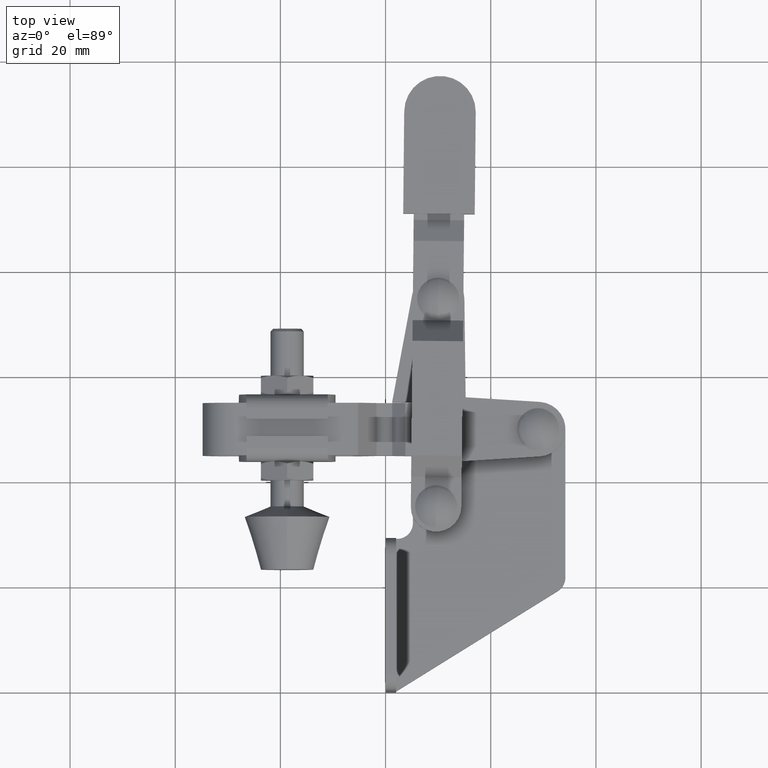
[diagram: clean part render]
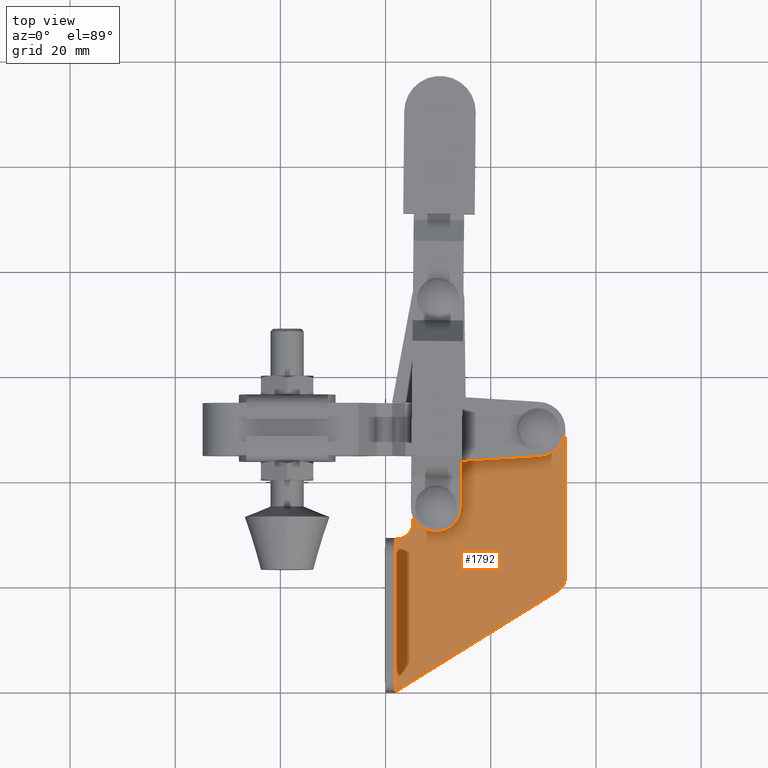
[diagram: same view with one face highlighted and labeled with its STEP entity id]
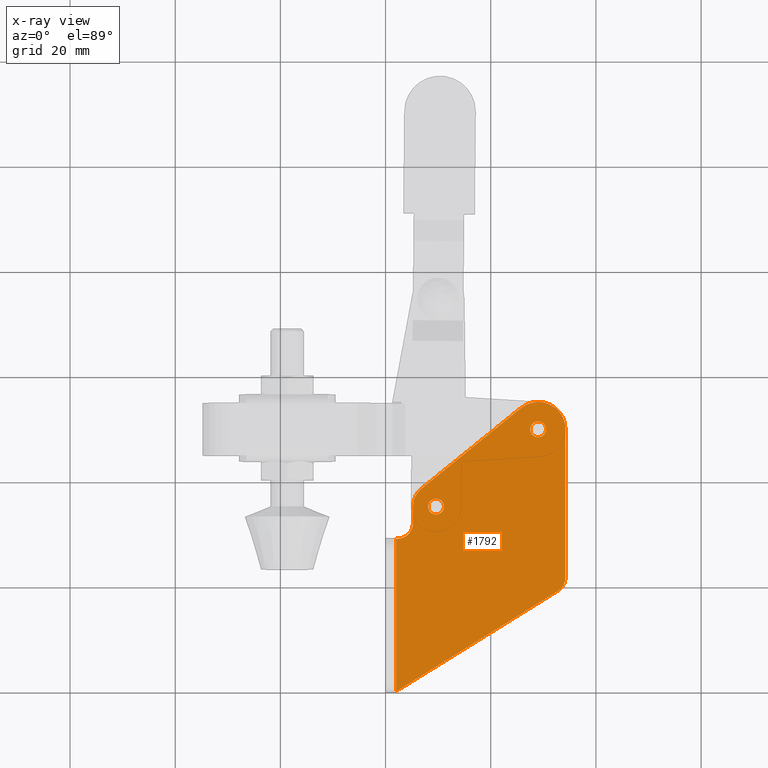
[diagram: x-ray of the same camera — body ghosted, the highlighted face saturated]
A machine part, top view. The second image highlights one B-rep face of the part: STEP entity #1792.
The next image is the same camera in x-ray: the body ghosted, the highlighted face saturated — about 0% of this face is hidden behind the body in this view.
In plain terms, the highlighted planar face has unit normal (0, 0, 1).
Its self-contained STEP definition (entity closure, byte-faithful):
#23 = AXIS2_PLACEMENT_3D ( 'NONE', #5182, #4203, #4212 ) ;
#273 = ORIENTED_EDGE ( 'NONE', *, *, #2440, .T. ) ;
#390 = CARTESIAN_POINT ( 'NONE',  ( 34.19999999999995300, 49.83000000000000500, 2.000000000000000000 ) ) ;
#454 = DIRECTION ( 'NONE',  ( -2.463941005689779100E-016, 1.000000000000000000, -0.0000000000000000000 ) ) ;
#516 = AXIS2_PLACEMENT_3D ( 'NONE', #8705, #6193, #638 ) ;
#535 = AXIS2_PLACEMENT_3D ( 'NONE', #3298, #9669, #4166 ) ;
#602 = LINE ( 'NONE', #390, #6183 ) ;
#638 = DIRECTION ( 'NONE',  ( 1.000000000000000000, 0.0000000000000000000, 0.0000000000000000000 ) ) ;
#747 = FACE_OUTER_BOUND ( 'NONE', #7715, .T. ) ;
#763 = VERTEX_POINT ( 'NONE', #8246 ) ;
#929 = VECTOR ( 'NONE', #1262, 1000.000000000000100 ) ;
#1213 = EDGE_CURVE ( 'NONE', #3028, #5829, #4972, .T. ) ;
#1262 = DIRECTION ( 'NONE',  ( 0.8494770825138299200, 0.5276255170893382500, 0.0000000000000000000 ) ) ;
#1269 = VERTEX_POINT ( 'NONE', #9660 ) ;
#1341 = DIRECTION ( 'NONE',  ( 1.000000000000000000, 0.0000000000000000000, 0.0000000000000000000 ) ) ;
#1406 = ORIENTED_EDGE ( 'NONE', *, *, #1548, .T. ) ;
#1470 = DIRECTION ( 'NONE',  ( 1.000000000000000000, 0.0000000000000000000, 0.0000000000000000000 ) ) ;
#1505 = CARTESIAN_POINT ( 'NONE',  ( 9.600000000000108000, 35.13000000000007400, 2.000000000000000000 ) ) ;
#1512 = AXIS2_PLACEMENT_3D ( 'NONE', #5646, #4781, #3209 ) ;
#1548 = EDGE_CURVE ( 'NONE', #763, #3866, #4587, .T. ) ;
#1623 = CARTESIAN_POINT ( 'NONE',  ( 8.100000000000108000, 35.13000000000007400, 2.000000000000000000 ) ) ;
#1693 = EDGE_CURVE ( 'NONE', #7242, #6197, #6787, .T. ) ;
#1702 = DIRECTION ( 'NONE',  ( -0.7767518262116758200, -0.6298067961500782900, 0.0000000000000000000 ) ) ;
#1779 = PLANE ( 'NONE',  #535 ) ;
#1790 = VERTEX_POINT ( 'NONE', #8824 ) ;
#1792 = ADVANCED_FACE ( 'NONE', ( #8662, #8279, #747 ), #1779, .T. ) ;
#2024 = EDGE_CURVE ( 'NONE', #5829, #8106, #7507, .T. ) ;
#2109 = ORIENTED_EDGE ( 'NONE', *, *, #2275, .F. ) ;
#2275 = EDGE_CURVE ( 'NONE', #1269, #2732, #9261, .T. ) ;
#2425 = EDGE_LOOP ( 'NONE', ( #9180, #8663 ) ) ;
#2440 = EDGE_CURVE ( 'NONE', #4392, #3907, #5548, .T. ) ;
#2732 = VERTEX_POINT ( 'NONE', #6257 ) ;
#2774 = DIRECTION ( 'NONE',  ( 0.0000000000000000000, 0.0000000000000000000, 1.000000000000000000 ) ) ;
#2990 = DIRECTION ( 'NONE',  ( 1.000000000000000000, 0.0000000000000000000, 0.0000000000000000000 ) ) ;
#3028 = VERTEX_POINT ( 'NONE', #7648 ) ;
#3105 = CARTESIAN_POINT ( 'NONE',  ( 2.000000000000000000, 29.00000000000002800, 2.000000000000001800 ) ) ;
#3143 = CARTESIAN_POINT ( 'NONE',  ( 34.19999999999996000, 21.66823034770799000, 2.000000000000000000 ) ) ;
#3188 = EDGE_CURVE ( 'NONE', #3812, #9506, #4629, .T. ) ;
#3209 = DIRECTION ( 'NONE',  ( 1.000000000000000000, 0.0000000000000000000, 0.0000000000000000000 ) ) ;
#3263 = CARTESIAN_POINT ( 'NONE',  ( 31.20000000000007000, 21.66823034770798300, 2.000000000000000000 ) ) ;
#3298 = CARTESIAN_POINT ( 'NONE',  ( 31.20000000000007000, 21.66823034770798300, 2.000000000000000000 ) ) ;
#3343 = CARTESIAN_POINT ( 'NONE',  ( 2.200000000000146300, 29.00000000000002500, 2.000000000000000000 ) ) ;
#3553 = DIRECTION ( 'NONE',  ( 0.0000000000000000000, 0.0000000000000000000, 1.000000000000000000 ) ) ;
#3588 = DIRECTION ( 'NONE',  ( 1.000000000000000000, 0.0000000000000000000, 0.0000000000000000000 ) ) ;
#3617 = CARTESIAN_POINT ( 'NONE',  ( 5.200000000000147600, 35.13000000000007400, 2.000000000000000000 ) ) ;
#3753 = ORIENTED_EDGE ( 'NONE', *, *, #6013, .T. ) ;
#3812 = VERTEX_POINT ( 'NONE', #4356 ) ;
#3814 = CARTESIAN_POINT ( 'NONE',  ( 9.600000000000108000, 35.13000000000007400, 2.000000000000000000 ) ) ;
#3866 = VERTEX_POINT ( 'NONE', #3143 ) ;
#3907 = VERTEX_POINT ( 'NONE', #3105 ) ;
#4043 = CARTESIAN_POINT ( 'NONE',  ( 29.00000000000008200, 49.83000000000000500, 2.000000000000000000 ) ) ;
#4062 = DIRECTION ( 'NONE',  ( 0.0000000000000000000, 0.0000000000000000000, 1.000000000000000000 ) ) ;
#4106 = AXIS2_PLACEMENT_3D ( 'NONE', #3263, #2774, #2990 ) ;
#4166 = DIRECTION ( 'NONE',  ( 1.000000000000000000, 0.0000000000000000000, -0.0000000000000000000 ) ) ;
#4203 = DIRECTION ( 'NONE',  ( -0.0000000000000000000, -0.0000000000000000000, -1.000000000000000000 ) ) ;
#4212 = DIRECTION ( 'NONE',  ( 1.000000000000000000, 0.0000000000000000000, 0.0000000000000000000 ) ) ;
#4356 = CARTESIAN_POINT ( 'NONE',  ( 11.10000000000011000, 35.13000000000007400, 2.000000000000000000 ) ) ;
#4392 = VERTEX_POINT ( 'NONE', #3343 ) ;
#4587 = CIRCLE ( 'NONE', #4106, 2.999999999999888100 ) ;
#4600 = CARTESIAN_POINT ( 'NONE',  ( 29.00000000000008200, 49.83000000000000500, 2.000000000000000000 ) ) ;
#4626 = ORIENTED_EDGE ( 'NONE', *, *, #7365, .T. ) ;
#4629 = CIRCLE ( 'NONE', #6988, 1.500000000000001300 ) ;
#4653 = VECTOR ( 'NONE', #6502, 1000.000000000000000 ) ;
#4781 = DIRECTION ( 'NONE',  ( 0.0000000000000000000, 0.0000000000000000000, 1.000000000000000000 ) ) ;
#4972 = CIRCLE ( 'NONE', #1512, 4.400000000000010100 ) ;
#4982 = CIRCLE ( 'NONE', #8754, 1.500000000000001300 ) ;
#4984 = EDGE_CURVE ( 'NONE', #3866, #7242, #602, .T. ) ;
#5153 = LINE ( 'NONE', #10111, #929 ) ;
#5182 = CARTESIAN_POINT ( 'NONE',  ( 2.200000000000145800, 32.00000000000002800, 2.000000000000000000 ) ) ;
#5329 = VECTOR ( 'NONE', #1702, 1000.000000000000100 ) ;
#5357 = VECTOR ( 'NONE', #6929, 1000.000000000000000 ) ;
#5373 = CIRCLE ( 'NONE', #6532, 1.500000000000001300 ) ;
#5548 = LINE ( 'NONE', #8765, #4653 ) ;
#5589 = EDGE_CURVE ( 'NONE', #2732, #1269, #4982, .T. ) ;
#5646 = CARTESIAN_POINT ( 'NONE',  ( 9.600000000000108000, 35.13000000000007400, 2.000000000000000000 ) ) ;
#5829 = VERTEX_POINT ( 'NONE', #8381 ) ;
#5851 = LINE ( 'NONE', #8938, #9972 ) ;
#6013 = EDGE_CURVE ( 'NONE', #1790, #763, #5153, .T. ) ;
#6183 = VECTOR ( 'NONE', #454, 1000.000000000000000 ) ;
#6186 = EDGE_CURVE ( 'NONE', #9506, #3812, #5373, .T. ) ;
#6193 = DIRECTION ( 'NONE',  ( 0.0000000000000000000, 0.0000000000000000000, 1.000000000000000000 ) ) ;
#6197 = VERTEX_POINT ( 'NONE', #8945 ) ;
#6257 = CARTESIAN_POINT ( 'NONE',  ( 30.50000000000008200, 49.83000000000000500, 2.000000000000000000 ) ) ;
#6362 = ORIENTED_EDGE ( 'NONE', *, *, #9962, .T. ) ;
#6485 = ORIENTED_EDGE ( 'NONE', *, *, #2024, .T. ) ;
#6502 = DIRECTION ( 'NONE',  ( -1.000000000000000000, 0.0000000000000000000, 0.0000000000000000000 ) ) ;
#6532 = AXIS2_PLACEMENT_3D ( 'NONE', #3814, #3553, #3588 ) ;
#6559 = ORIENTED_EDGE ( 'NONE', *, *, #5589, .F. ) ;
#6673 = CARTESIAN_POINT ( 'NONE',  ( 25.72500466001963600, 53.86910949630065900, 2.000000000000000000 ) ) ;
#6787 = CIRCLE ( 'NONE', #9384, 5.199999999999926500 ) ;
#6929 = DIRECTION ( 'NONE',  ( 8.313371290623563200E-016, -1.000000000000000000, 0.0000000000000000000 ) ) ;
#6988 = AXIS2_PLACEMENT_3D ( 'NONE', #1505, #8580, #1470 ) ;
#7048 = DIRECTION ( 'NONE',  ( 0.0000000000000000000, 0.0000000000000000000, 1.000000000000000000 ) ) ;
#7069 = CIRCLE ( 'NONE', #23, 3.000000000000003100 ) ;
#7220 = ORIENTED_EDGE ( 'NONE', *, *, #1213, .T. ) ;
#7242 = VERTEX_POINT ( 'NONE', #8520 ) ;
#7365 = EDGE_CURVE ( 'NONE', #3907, #1790, #5851, .T. ) ;
#7430 = EDGE_CURVE ( 'NONE', #6197, #3028, #7479, .T. ) ;
#7479 = LINE ( 'NONE', #6673, #5329 ) ;
#7507 = LINE ( 'NONE', #3617, #5357 ) ;
#7554 = CARTESIAN_POINT ( 'NONE',  ( 5.200000000000148500, 32.00000000000002800, 2.000000000000000000 ) ) ;
#7648 = CARTESIAN_POINT ( 'NONE',  ( 6.828850096939700800, 38.54770803533140400, 2.000000000000000000 ) ) ;
#7715 = EDGE_LOOP ( 'NONE', ( #273, #4626, #3753, #1406, #8050, #9285, #7813, #7220, #6485, #6362 ) ) ;
#7813 = ORIENTED_EDGE ( 'NONE', *, *, #7430, .T. ) ;
#8050 = ORIENTED_EDGE ( 'NONE', *, *, #4984, .T. ) ;
#8106 = VERTEX_POINT ( 'NONE', #7554 ) ;
#8246 = CARTESIAN_POINT ( 'NONE',  ( 32.78287655126803200, 19.11979910016658800, 2.000000000000000000 ) ) ;
#8279 = FACE_BOUND ( 'NONE', #2425, .T. ) ;
#8381 = CARTESIAN_POINT ( 'NONE',  ( 5.200000000000147600, 35.13000000000007400, 2.000000000000000000 ) ) ;
#8520 = CARTESIAN_POINT ( 'NONE',  ( 34.20000000000001000, 49.83000000000000500, 2.000000000000000000 ) ) ;
#8580 = DIRECTION ( 'NONE',  ( 0.0000000000000000000, 0.0000000000000000000, 1.000000000000000000 ) ) ;
#8662 = FACE_BOUND ( 'NONE', #8739, .T. ) ;
#8663 = ORIENTED_EDGE ( 'NONE', *, *, #3188, .F. ) ;
#8705 = CARTESIAN_POINT ( 'NONE',  ( 29.00000000000008200, 49.83000000000000500, 2.000000000000000000 ) ) ;
#8739 = EDGE_LOOP ( 'NONE', ( #2109, #6559 ) ) ;
#8754 = AXIS2_PLACEMENT_3D ( 'NONE', #4043, #7048, #9582 ) ;
#8765 = CARTESIAN_POINT ( 'NONE',  ( 2.200000000000146300, 29.00000000000002500, 2.000000000000000000 ) ) ;
#8824 = CARTESIAN_POINT ( 'NONE',  ( 2.000000000000000000, 3.184843881676169300E-016, 2.000000000000000000 ) ) ;
#8938 = CARTESIAN_POINT ( 'NONE',  ( 2.000000000000000000, 29.00000000000002800, 2.000000000000001800 ) ) ;
#8945 = CARTESIAN_POINT ( 'NONE',  ( 25.72500466001963600, 53.86910949630065900, 2.000000000000000000 ) ) ;
#9108 = DIRECTION ( 'NONE',  ( 0.0000000000000000000, -1.000000000000000000, 5.981805089575190000E-017 ) ) ;
#9180 = ORIENTED_EDGE ( 'NONE', *, *, #6186, .F. ) ;
#9261 = CIRCLE ( 'NONE', #516, 1.500000000000001300 ) ;
#9285 = ORIENTED_EDGE ( 'NONE', *, *, #1693, .T. ) ;
#9384 = AXIS2_PLACEMENT_3D ( 'NONE', #4600, #4062, #1341 ) ;
#9506 = VERTEX_POINT ( 'NONE', #1623 ) ;
#9582 = DIRECTION ( 'NONE',  ( 1.000000000000000000, 0.0000000000000000000, 0.0000000000000000000 ) ) ;
#9660 = CARTESIAN_POINT ( 'NONE',  ( 27.50000000000007800, 49.83000000000000500, 2.000000000000000000 ) ) ;
#9669 = DIRECTION ( 'NONE',  ( 0.0000000000000000000, 0.0000000000000000000, 1.000000000000000000 ) ) ;
#9962 = EDGE_CURVE ( 'NONE', #8106, #4392, #7069, .T. ) ;
#9972 = VECTOR ( 'NONE', #9108, 1000.000000000000000 ) ;
#10111 = CARTESIAN_POINT ( 'NONE',  ( 2.000000000000000000, 3.184843881676169300E-016, 2.000000000000000000 ) ) ;